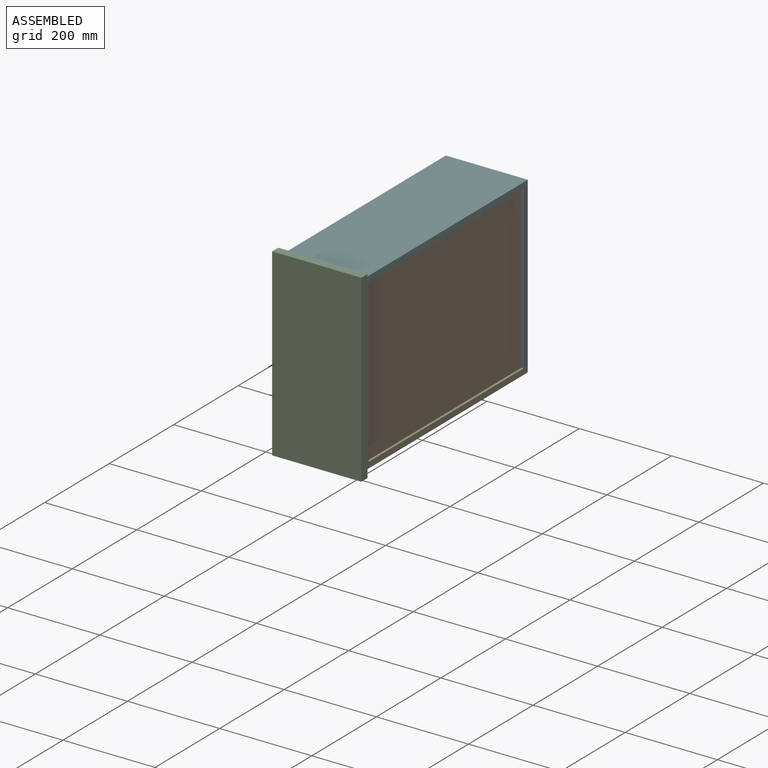
[diagram: assembled view]
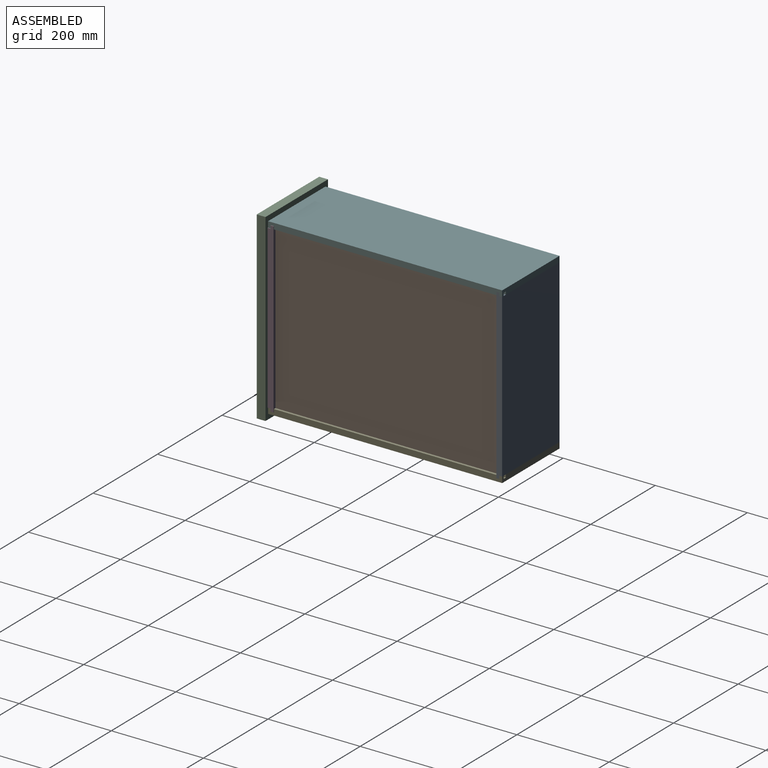
[diagram: assembled view, second angle]
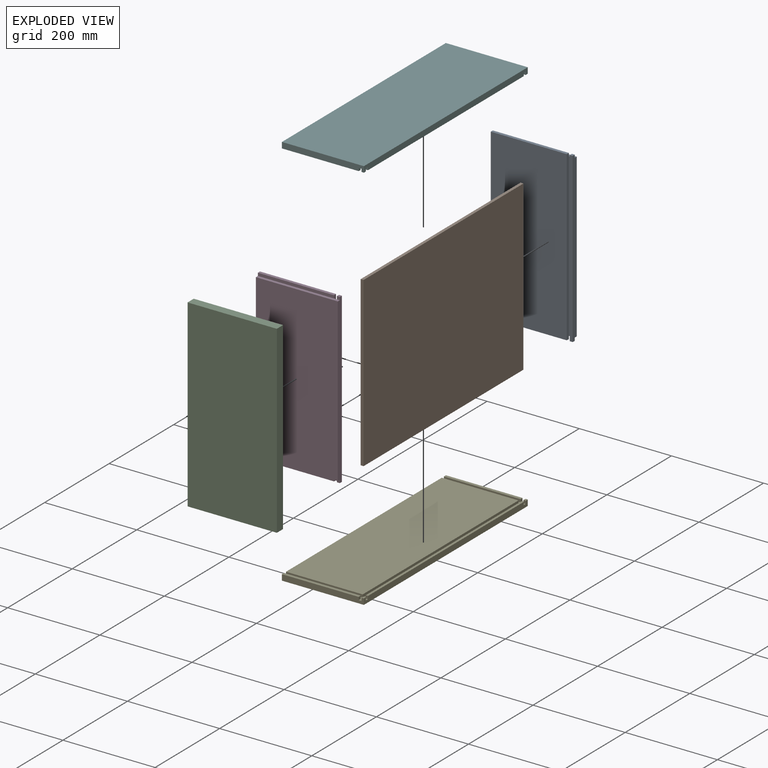
[diagram: exploded view]
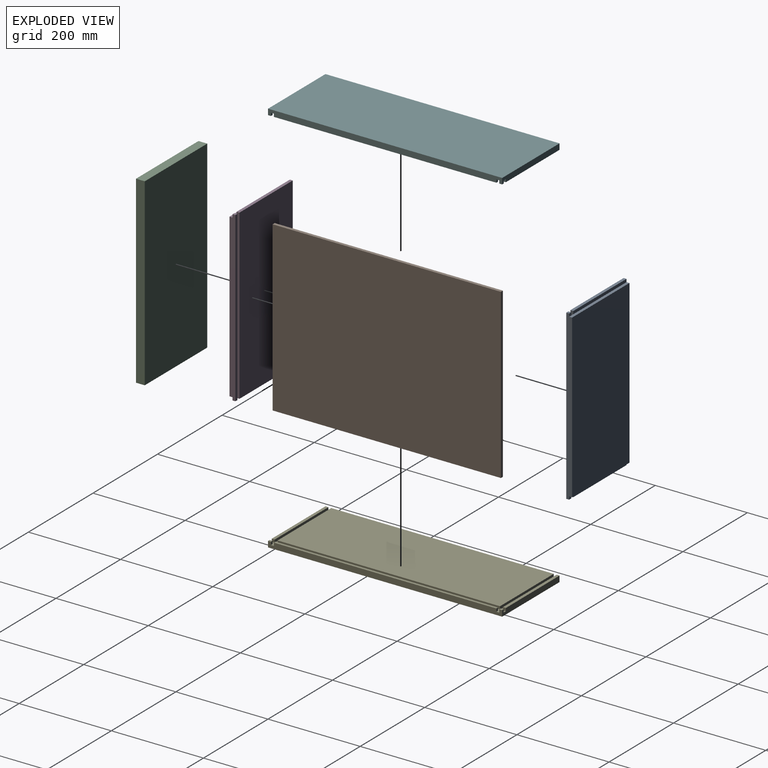
[diagram: exploded view, second angle]
ASSEMBLY  parts=6 mates=5
PART A: 18 faces, bbox 177.8x12.7x365.1 mm
  f0: plane 365.13x6.35mm, normal (0,1,0), area 2318.5mm2, adj f1,f3,f4,f6
  f1: plane 6.35x6.35mm, normal (0,0,1), area 40.3mm2, adj f0,f2,f4,f6
  f2: plane 6.35x6.35mm, normal (0,-1,0), area 40.3mm2, adj f1,f4,f5,f6
  f3: plane 6.35x6.35mm, normal (0,0,-1), area 40.3mm2, adj f0,f4,f6,f7
  f4: plane 365.13x6.35mm, normal (-1,0,0), area 2318.5mm2, adj f0,f1,f2,f3,f7,f9
  f5: plane 177.8x6.35mm, normal (0,0,1), area 1129mm2, adj f2,f6,f8,f9,f10,f14
  f6: plane 365.13x12.7mm, normal (1,0,0), area 4556.4mm2, adj f0,f1,f2,f3,f5,f7,f8,f15
  f7: plane 6.35x6.35mm, normal (0,-1,0), area 40.3mm2, adj f3,f4,f6,f15
  f8: plane 352.43x177.8mm, normal (0,-1,0), area 62661.2mm2, adj f5,f6,f14,f15
  f9: plane 352.43x6.35mm, normal (0,1,0), area 2237.9mm2, adj f4,f5,f15,f16
  f10: plane 165.1x6.35mm, normal (0,-1,0), area 1048.4mm2, adj f5,f11,f14,f16
  f11: plane 165.1x6.35mm, normal (0,0,1), area 1048.4mm2, adj f10,f12,f14,f16
  f12: plane 365.13x165.1mm, normal (0,1,0), area 60282.1mm2, adj f11,f13,f14,f16
  f13: plane 165.1x6.35mm, normal (0,0,-1), area 1048.4mm2, adj f12,f14,f16,f17
  f14: plane 365.13x12.7mm, normal (-1,0,0), area 4556.4mm2, adj f5,f8,f10,f11,f12,f13,f15,f17
  f15: plane 177.8x6.35mm, normal (0,0,-1), area 1129mm2, adj f6,f7,f8,f9,f14,f17
  f16: plane 365.13x6.35mm, normal (1,0,0), area 2318.5mm2, adj f9,f10,f11,f12,f13,f17
  f17: plane 165.1x6.35mm, normal (0,-1,0), area 1048.4mm2, adj f13,f14,f15,f16
PART B: 6 faces, bbox 365.1x495.3x6.4 mm
  f0: plane 495.3x6.35mm, normal (-1,0,0), area 3145.2mm2, adj f1,f2,f3,f4
  f1: plane 495.3x365.13mm, normal (0,0,-1), area 180846.4mm2, adj f0,f2,f4,f5
  f2: plane 365.13x6.35mm, normal (0,1,0), area 2318.5mm2, adj f0,f1,f3,f5
  f3: plane 495.3x365.13mm, normal (0,0,1), area 180846.4mm2, adj f0,f2,f4,f5
  f4: plane 365.13x6.35mm, normal (0,-1,0), area 2318.5mm2, adj f0,f1,f3,f5
  f5: plane 495.3x6.35mm, normal (1,0,0), area 3145.2mm2, adj f1,f2,f3,f4
PART C: 6 faces, bbox 193.7x19.1x400.1 mm
  f0: plane 400.05x19.05mm, normal (-1,0,0), area 7621mm2, adj f1,f2,f3,f4
  f1: plane 193.68x19.05mm, normal (0,0,-1), area 3689.5mm2, adj f0,f2,f4,f5
  f2: plane 400.05x193.68mm, normal (0,1,0), area 77479.7mm2, adj f0,f1,f3,f5
  f3: plane 193.68x19.05mm, normal (0,0,1), area 3689.5mm2, adj f0,f2,f4,f5
  f4: plane 400.05x193.68mm, normal (0,-1,0), area 77479.7mm2, adj f0,f1,f3,f5
  f5: plane 400.05x19.05mm, normal (1,0,0), area 7621mm2, adj f1,f2,f3,f4
PART D: same geometry as A
PART E: 26 faces, bbox 177.8x12.7x508 mm
  f0: plane 6.35x5.04mm, normal (0,1,0), area 32mm2, adj f8,f9,f10,f14
  f1: plane 482.6x5.04mm, normal (0,1,0), area 2431.8mm2, adj f11,f12,f13,f14
  f2: plane 6.35x5.04mm, normal (0,1,0), area 32mm2, adj f14,f15,f16,f17
  f3: plane 166.41x6.35mm, normal (0,1,0), area 1056.7mm2, adj f6,f7,f8,f21
  f4: plane 508x177.8mm, normal (0,-1,0), area 90322.4mm2, adj f8,f14,f17,f21
  f5: plane 166.41x6.35mm, normal (0,1,0), area 1056.7mm2, adj f17,f18,f19,f21
  f6: plane 166.41x6.35mm, normal (0,0,1), area 1056.7mm2, adj f3,f7,f21,f22
  f7: plane 6.35x6.35mm, normal (1,0,0), area 40.3mm2, adj f3,f6,f8,f22
  f8: plane 177.8x12.7mm, normal (0,0,-1), area 2217.7mm2, adj f0,f3,f4,f7,f9,f14,f21,f22
  f9: plane 6.35x6.35mm, normal (-1,0,0), area 40.3mm2, adj f0,f8,f10,f22
  f10: plane 6.35x5.04mm, normal (0,0,1), area 32mm2, adj f0,f9,f14,f22
  f11: plane 6.35x5.04mm, normal (0,0,-1), area 32mm2, adj f1,f12,f14,f22
  f12: plane 482.6x6.35mm, normal (-1,0,0), area 3064.5mm2, adj f1,f11,f13,f22
  f13: plane 6.35x5.04mm, normal (0,0,1), area 32mm2, adj f1,f12,f14,f22
  f14: plane 508x12.7mm, normal (1,0,0), area 6371mm2, adj f0,f1,f2,f4,f8,f10,f11,f13
  f15: plane 6.35x5.04mm, normal (0,0,-1), area 32mm2, adj f2,f14,f16,f22
  f16: plane 6.35x6.35mm, normal (-1,0,0), area 40.3mm2, adj f2,f15,f17,f22
  f17: plane 177.8x12.7mm, normal (0,0,1), area 2217.7mm2, adj f2,f4,f5,f14,f16,f18,f21,f22
  f18: plane 6.35x6.35mm, normal (1,0,0), area 40.3mm2, adj f5,f17,f19,f22
  f19: plane 166.41x6.35mm, normal (0,0,-1), area 1056.7mm2, adj f5,f18,f21,f22
  f20: plane 166.41x6.35mm, normal (0,0,1), area 1056.7mm2, adj f21,f22,f23,f24
  f21: plane 508x12.7mm, normal (-1,0,0), area 6371mm2, adj f3,f4,f5,f6,f8,f17,f19,f20
  f22: plane 508x177.8mm, normal (0,1,0), area 5403.2mm2, adj f6,f7,f8,f9,f10,f11,f12,f13
  f23: plane 482.6x6.35mm, normal (1,0,0), area 3064.5mm2, adj f20,f22,f24,f25
  f24: plane 482.6x166.41mm, normal (0,1,0), area 80310mm2, adj f20,f21,f23,f25
  f25: plane 166.41x6.35mm, normal (0,0,-1), area 1056.7mm2, adj f21,f22,f23,f24
PART F: same geometry as E
PLACE A rot(axis=(1,0,0),180deg) t=(-224.19,522.99,349.65)mm
PLACE B rot(axis=(0,-1,0),90deg) t=(-51.43,529.34,-15.48)mm
PLACE C rot(axis=(-0.91,-0.31,-0.28),0deg) t=(-232.13,27.69,-32.94)mm
PLACE D t=(-222.88,40.39,-15.48)mm fixed
PLACE E rot(axis=(1,0,0),90deg) t=(-224.19,535.69,-9.13)mm
PLACE F rot(axis=(-1,0,0),90deg) t=(-224.19,27.69,343.3)mm
MATE fastened B.f5 <-> F.f22  axis (0,0,1) through (-51.43,34.04,349.65)mm
MATE fastened A.f5 <-> E.f3  axis (0,0,-1) through (-224.19,535.69,-9.13)mm
MATE fastened A.f15 <-> F.f5  axis (0,0,1) through (-224.19,535.69,343.3)mm
MATE fastened F.f8 <-> C.f2  axis (0,-1,0) through (-224.19,27.69,356)mm
MATE fastened D.f15 <-> E.f2  axis (0,0,-1) through (-45.08,27.69,-9.13)mm
